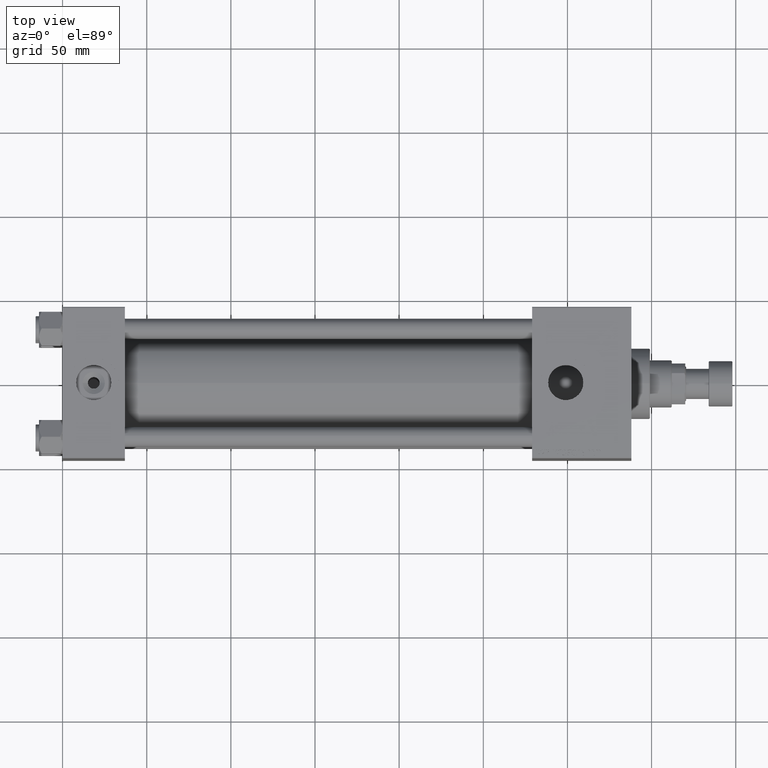
[diagram: clean part render]
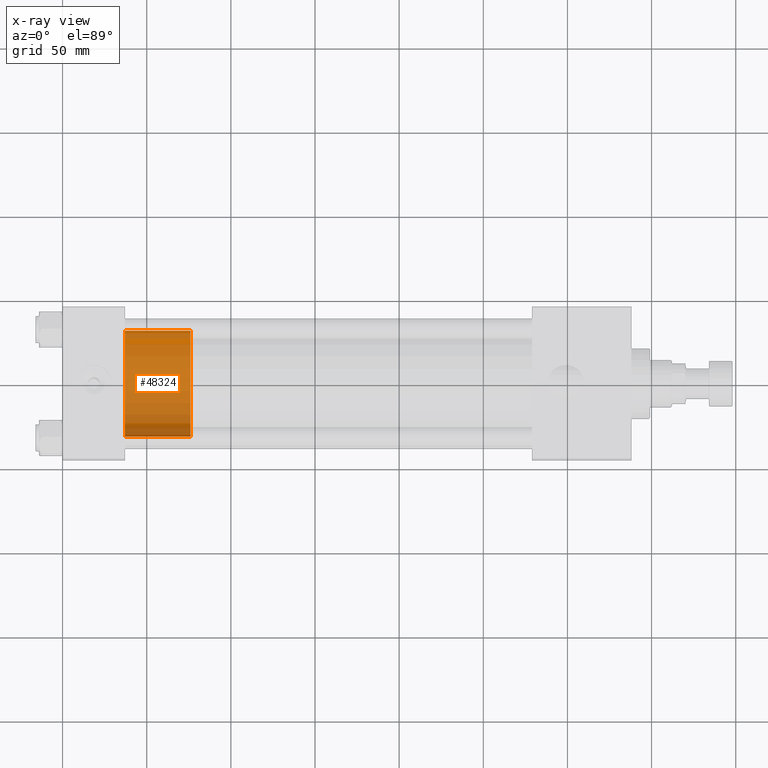
[diagram: x-ray — body ghosted, one internal face saturated and labeled with its STEP entity id]
A machine part, top view, then the same camera in x-ray: the body is ghosted and one INTERNAL B-rep face — a face not visible from any outside direction — is saturated and labeled: STEP entity #48324.
In plain terms, the highlighted cylindrical surface (partial cylindrical patch) has radius 31.5 mm, axis along (-1, 0, 0).
Its self-contained STEP definition (entity closure, byte-faithful):
#1595 = CARTESIAN_POINT ( 'NONE',  ( -31.50000000000000000, 0.000000000000000000, 39.00000000000000000 ) ) ;
#2099 = VERTEX_POINT ( 'NONE', #38132 ) ;
#2261 = VECTOR ( 'NONE', #19106, 1000.000000000000000 ) ;
#2821 = CARTESIAN_POINT ( 'NONE',  ( 31.50000000000000000, 3.857637417314162689E-15, 39.00000000000000000 ) ) ;
#4766 = DIRECTION ( 'NONE',  ( -1.000000000000000000, 0.000000000000000000, 0.000000000000000000 ) ) ;
#5907 = ORIENTED_EDGE ( 'NONE', *, *, #34622, .F. ) ;
#7408 = ORIENTED_EDGE ( 'NONE', *, *, #52318, .F. ) ;
#8778 = CIRCLE ( 'NONE', #50637, 31.50000000000000000 ) ;
#9275 = DIRECTION ( 'NONE',  ( -0.000000000000000000, -0.000000000000000000, -1.000000000000000000 ) ) ;
#9300 = DIRECTION ( 'NONE',  ( 0.000000000000000000, 0.000000000000000000, 1.000000000000000000 ) ) ;
#10549 = LINE ( 'NONE', #2821, #2261 ) ;
#12446 = VERTEX_POINT ( 'NONE', #51130 ) ;
#15763 = LINE ( 'NONE', #19504, #42016 ) ;
#19106 = DIRECTION ( 'NONE',  ( -0.000000000000000000, -0.000000000000000000, -1.000000000000000000 ) ) ;
#19504 = CARTESIAN_POINT ( 'NONE',  ( -31.50000000000000000, 0.000000000000000000, 39.00000000000000000 ) ) ;
#19612 = AXIS2_PLACEMENT_3D ( 'NONE', #51588, #48118, #31852 ) ;
#21308 = CYLINDRICAL_SURFACE ( 'NONE', #24832, 31.50000000000000000 ) ;
#24644 = EDGE_CURVE ( 'NONE', #2099, #38315, #42607, .T. ) ;
#24832 = AXIS2_PLACEMENT_3D ( 'NONE', #45841, #9275, #4766 ) ;
#27298 = EDGE_LOOP ( 'NONE', ( #5907, #47511, #28108, #7408 ) ) ;
#28108 = ORIENTED_EDGE ( 'NONE', *, *, #24644, .T. ) ;
#29352 = CARTESIAN_POINT ( 'NONE',  ( 0.000000000000000000, 0.000000000000000000, 39.00000000000000000 ) ) ;
#31518 = DIRECTION ( 'NONE',  ( -0.000000000000000000, -0.000000000000000000, -1.000000000000000000 ) ) ;
#31852 = DIRECTION ( 'NONE',  ( 1.000000000000000000, 0.000000000000000000, 0.000000000000000000 ) ) ;
#33844 = FACE_OUTER_BOUND ( 'NONE', #27298, .T. ) ;
#34622 = EDGE_CURVE ( 'NONE', #12446, #46387, #8778, .T. ) ;
#37087 = DIRECTION ( 'NONE',  ( 1.000000000000000000, 0.000000000000000000, 0.000000000000000000 ) ) ;
#37279 = CARTESIAN_POINT ( 'NONE',  ( -31.50000000000000000, 0.000000000000000000, 0.000000000000000000 ) ) ;
#38132 = CARTESIAN_POINT ( 'NONE',  ( 31.50000000000000000, 3.857637417314162689E-15, 0.000000000000000000 ) ) ;
#38315 = VERTEX_POINT ( 'NONE', #37279 ) ;
#42016 = VECTOR ( 'NONE', #31518, 1000.000000000000000 ) ;
#42565 = EDGE_CURVE ( 'NONE', #12446, #2099, #10549, .T. ) ;
#42607 = CIRCLE ( 'NONE', #19612, 31.50000000000000000 ) ;
#45841 = CARTESIAN_POINT ( 'NONE',  ( 0.000000000000000000, 0.000000000000000000, 39.00000000000000000 ) ) ;
#46387 = VERTEX_POINT ( 'NONE', #1595 ) ;
#47511 = ORIENTED_EDGE ( 'NONE', *, *, #42565, .T. ) ;
#48118 = DIRECTION ( 'NONE',  ( 0.000000000000000000, 0.000000000000000000, 1.000000000000000000 ) ) ;
#48324 = ADVANCED_FACE ( 'NONE', ( #33844 ), #21308, .T. ) ;
#50637 = AXIS2_PLACEMENT_3D ( 'NONE', #29352, #9300, #37087 ) ;
#51130 = CARTESIAN_POINT ( 'NONE',  ( 31.50000000000000000, 3.857637417314162689E-15, 39.00000000000000000 ) ) ;
#51588 = CARTESIAN_POINT ( 'NONE',  ( 0.000000000000000000, 0.000000000000000000, 0.000000000000000000 ) ) ;
#52318 = EDGE_CURVE ( 'NONE', #46387, #38315, #15763, .T. ) ;